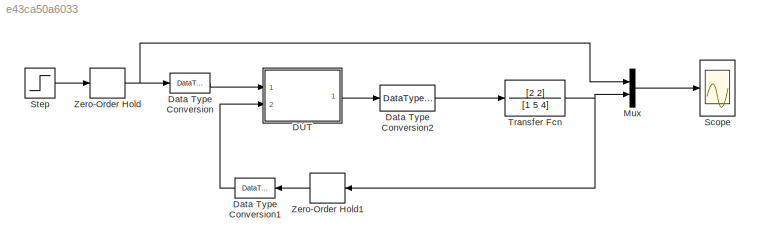
MODEL slx_e43ca50a6033
KIND model
CONFIG AbsTol = auto
CONFIG FixedStep = auto
CONFIG MaxStep = auto
CONFIG MinStep = auto
CONFIG RelTol = 1e-3
CONFIG SampleTimeConstraint = Unconstrained
CONFIG Solver = ode45
CONFIG SolverMode = SingleTasking
CONFIG SolverName = ode45
CONFIG StartTime = 0.0
CONFIG StopTime = 10
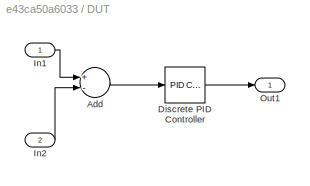
BLOCK [SubSystem] DUT
  Ports = [2, 1]
  RequestExecContextInheritance = off
  Variant = off
BLOCK [Sum] DUT/Add
  InputSameDT = off
  Inputs = +-
  OutDataTypeStr = fixdt(1,24,18)
  Ports = [2, 1]
  RndMeth = Nearest
  SaturateOnIntegerOverflow = off
BLOCK [Reference] DUT/Discrete PID Controller  REF=simulink/Continuous/PID Controller
  Ports = [1, 1]
  SourceBlock = simulink/Continuous/PID Controller
  SourceType = PID 1dof
BLOCK [Inport] DUT/In1
  IconDisplay = Port number
BLOCK [Inport] DUT/In2
  IconDisplay = Port number
  Port = 2
BLOCK [Outport] DUT/Out1
  IconDisplay = Port number
BLOCK [DataTypeConversion] Data Type Conversion
  OutDataTypeStr = fixdt(1,24,18)
  RndMeth = Nearest
  SaturateOnIntegerOverflow = off
BLOCK [DataTypeConversion] Data Type Conversion1
  OutDataTypeStr = fixdt(1,24,20)
  RndMeth = Nearest
  SaturateOnIntegerOverflow = off
BLOCK [DataTypeConversion] Data Type Conversion2
  OutDataTypeStr = double
  RndMeth = Nearest
  SaturateOnIntegerOverflow = off
BLOCK [Mux] Mux
  DisplayOption = bar
  Inputs = 2
  Ports = [2, 1]
BLOCK [Scope] Scope
  Ports = [1]
  ScopeSpecificationString = Simulink.scopes.TimeScopeBlockCfg('CurrentConfiguration', extmgr.ConfigurationSet(extmgr.Configuration('Core','General UI',true),extmgr.Configuration('Core','Source UI',true),extmgr.Configuration('Sources','WiredSimulink',true,'DataLoggingSaveFormat','StructureWithTime','DataLoggingDecimation','1','DataLoggingDecimateData',true),extmgr.Configuration('Visuals','Time Domain',true,'SerializedDisplays...<+1684ch>
BLOCK [Step] Step
  SampleTime = 0
BLOCK [TransferFcn] Transfer Fcn
  Denominator = [1 5 4]
  Numerator = [2 2]
BLOCK [ZeroOrderHold] Zero-Order Hold
  SampleTime = 1/1000
BLOCK [ZeroOrderHold] Zero-Order Hold1
  SampleTime = 1/1000
LINE DUT/Add:1 -> DUT/Discrete PID Controller:1
LINE DUT/Discrete PID Controller:1 -> DUT/Out1:1
LINE DUT/In1:1 -> DUT/Add:1
LINE DUT/In2:1 -> DUT/Add:2
LINE DUT:1 -> Data Type Conversion2:1
LINE Data Type Conversion1:1 -> DUT:2
LINE Data Type Conversion2:1 -> Transfer Fcn:1
LINE Data Type Conversion:1 -> DUT:1
LINE Mux:1 -> Scope:1
LINE Step:1 -> Zero-Order Hold:1
NET Transfer Fcn:1 -> Mux:2, Zero-Order Hold1:1
LINE Zero-Order Hold1:1 -> Data Type Conversion1:1
NET Zero-Order Hold:1 -> Data Type Conversion:1, Mux:1
note: NET lines group one-source signal fan-out (src -> all destinations, sorted); 1:1 wires keep LINE
